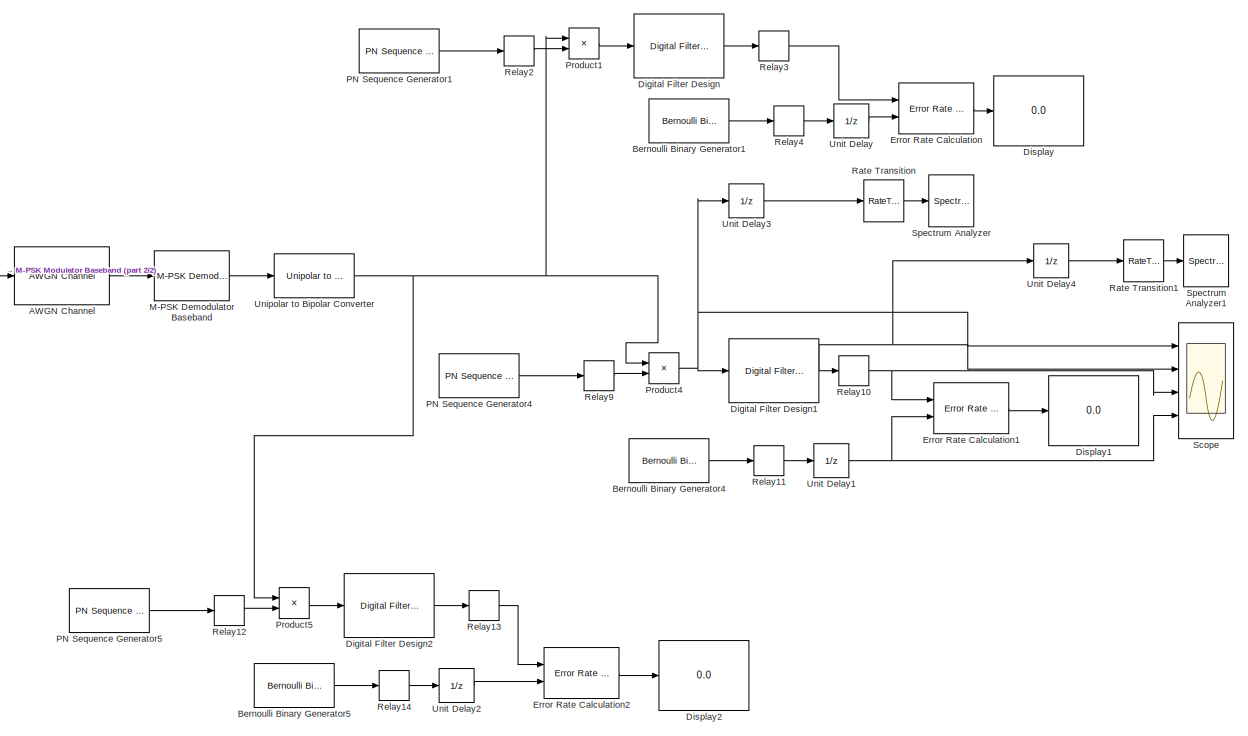
[diagram: root canvas - part 1/2, center side, full height]
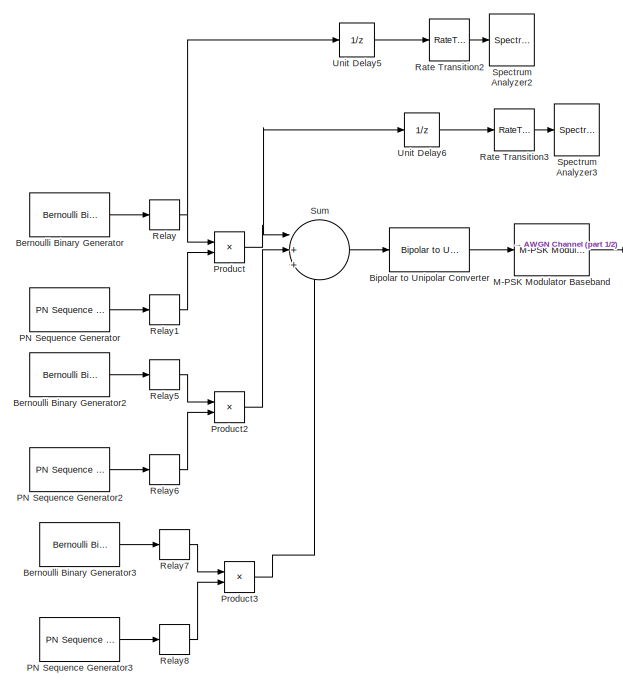
[diagram: root canvas - part 2/2, left side, full height]
MODEL slx_fc564ec34959
KIND model
CONFIG AbsTol = auto
CONFIG EnableMultiTasking = off
CONFIG FixedStep = auto
CONFIG MaxStep = auto
CONFIG MinStep = auto
CONFIG RelTol = 1e-3
CONFIG SampleTimeConstraint = Unconstrained
CONFIG Solver = VariableStepAuto
CONFIG SolverName = VariableStepAuto
CONFIG StartTime = 0.0
CONFIG StopTime = 10.0
BLOCK [Reference] AWGN Channel  REF=commchan3/AWGN
Channel
  Ports = [1, 1]
  SourceBlock = commchan3/AWGN\nChannel
  SourceProductBaseCode = CM
  SourceType = AWGN Channel
  UserDataPersistent = on
BLOCK [Reference] Bernoulli Binary Generator  REF=commrandsrc3/Bernoulli Binary
Generator
  Ports = [0, 1]
  SourceBlock = commrandsrc3/Bernoulli Binary\nGenerator
  SourceProductBaseCode = CM
  SourceType = Bernoulli Binary Generator
BLOCK [Reference] Bernoulli Binary Generator1  REF=commrandsrc3/Bernoulli Binary
Generator
  Ports = [0, 1]
  SourceBlock = commrandsrc3/Bernoulli Binary\nGenerator
  SourceProductBaseCode = CM
  SourceType = Bernoulli Binary Generator
BLOCK [Reference] Bernoulli Binary Generator2  REF=commrandsrc3/Bernoulli Binary
Generator
  Ports = [0, 1]
  SourceBlock = commrandsrc3/Bernoulli Binary\nGenerator
  SourceProductBaseCode = CM
  SourceType = Bernoulli Binary Generator
BLOCK [Reference] Bernoulli Binary Generator3  REF=commrandsrc3/Bernoulli Binary
Generator
  Ports = [0, 1]
  SourceBlock = commrandsrc3/Bernoulli Binary\nGenerator
  SourceProductBaseCode = CM
  SourceType = Bernoulli Binary Generator
BLOCK [Reference] Bernoulli Binary Generator4  REF=commrandsrc3/Bernoulli Binary
Generator
  Ports = [0, 1]
  SourceBlock = commrandsrc3/Bernoulli Binary\nGenerator
  SourceProductBaseCode = CM
  SourceType = Bernoulli Binary Generator
BLOCK [Reference] Bernoulli Binary Generator5  REF=commrandsrc3/Bernoulli Binary
Generator
  Ports = [0, 1]
  SourceBlock = commrandsrc3/Bernoulli Binary\nGenerator
  SourceProductBaseCode = CM
  SourceType = Bernoulli Binary Generator
BLOCK [Reference] Bipolar to Unipolar Converter  REF=commutil2/Bipolar to
Unipolar
Converter
  Ports = [1, 1]
  SourceBlock = commutil2/Bipolar to\nUnipolar\nConverter
  SourceProductBaseCode = CM
  SourceType = Bipolar to Unipolar Converter
BLOCK [Reference] Digital Filter Design  REF=dsparch4/Digital
Filter Design
  Ports = [1, 1]
  SourceBlock = dsparch4/Digital\nFilter Design
  SourceProductBaseCode = DS
  SourceType = Digital Filter Design
  UserDataPersistent = on
BLOCK [Reference] Digital Filter Design1  REF=dsparch4/Digital
Filter Design
  Ports = [1, 1]
  SourceBlock = dsparch4/Digital\nFilter Design
  SourceProductBaseCode = DS
  SourceType = Digital Filter Design
  UserDataPersistent = on
BLOCK [Reference] Digital Filter Design2  REF=dsparch4/Digital
Filter Design
  Ports = [1, 1]
  SourceBlock = dsparch4/Digital\nFilter Design
  SourceProductBaseCode = DS
  SourceType = Digital Filter Design
  UserDataPersistent = on
BLOCK [Display] Display
  Decimation = 1
  Ports = [1]
BLOCK [Display] Display1
  Decimation = 1
  Ports = [1]
BLOCK [Display] Display2
  Decimation = 1
  Ports = [1]
BLOCK [Reference] Error Rate Calculation  REF=commsink2/Error Rate
Calculation
  Ports = [2, 1]
  SourceBlock = commsink2/Error Rate\nCalculation
  SourceProductBaseCode = CM
  SourceType = Error Rate Calculation
BLOCK [Reference] Error Rate Calculation1  REF=commsink2/Error Rate
Calculation
  Ports = [2, 1]
  SourceBlock = commsink2/Error Rate\nCalculation
  SourceProductBaseCode = CM
  SourceType = Error Rate Calculation
BLOCK [Reference] Error Rate Calculation2  REF=commsink2/Error Rate
Calculation
  Ports = [2, 1]
  SourceBlock = commsink2/Error Rate\nCalculation
  SourceProductBaseCode = CM
  SourceType = Error Rate Calculation
BLOCK [Reference] M-PSK Demodulator Baseband  REF=commdigbbndpm3/M-PSK
Demodulator
Baseband
  Ports = [1, 1]
  SourceBlock = commdigbbndpm3/M-PSK\nDemodulator\nBaseband
  SourceProductBaseCode = CM
  SourceType = M-PSK Demodulator Baseband
BLOCK [Reference] M-PSK Modulator Baseband  REF=commdigbbndpm3/M-PSK
Modulator
Baseband
  Ports = [1, 1]
  SourceBlock = commdigbbndpm3/M-PSK\nModulator\nBaseband
  SourceProductBaseCode = CM
  SourceType = M-PSK Modulator Baseband
BLOCK [Reference] PN Sequence Generator  REF=commseqgen3/PN Sequence
Generator
  Ports = [0, 1]
  SourceBlock = commseqgen3/PN Sequence\nGenerator
  SourceProductBaseCode = CM
  SourceType = PN Sequence Generator
BLOCK [Reference] PN Sequence Generator1  REF=commseqgen3/PN Sequence
Generator
  Ports = [0, 1]
  SourceBlock = commseqgen3/PN Sequence\nGenerator
  SourceProductBaseCode = CM
  SourceType = PN Sequence Generator
BLOCK [Reference] PN Sequence Generator2  REF=commseqgen3/PN Sequence
Generator
  Ports = [0, 1]
  SourceBlock = commseqgen3/PN Sequence\nGenerator
  SourceProductBaseCode = CM
  SourceType = PN Sequence Generator
BLOCK [Reference] PN Sequence Generator3  REF=commseqgen3/PN Sequence
Generator
  Ports = [0, 1]
  SourceBlock = commseqgen3/PN Sequence\nGenerator
  SourceProductBaseCode = CM
  SourceType = PN Sequence Generator
BLOCK [Reference] PN Sequence Generator4  REF=commseqgen3/PN Sequence
Generator
  Ports = [0, 1]
  SourceBlock = commseqgen3/PN Sequence\nGenerator
  SourceProductBaseCode = CM
  SourceType = PN Sequence Generator
BLOCK [Reference] PN Sequence Generator5  REF=commseqgen3/PN Sequence
Generator
  Ports = [0, 1]
  SourceBlock = commseqgen3/PN Sequence\nGenerator
  SourceProductBaseCode = CM
  SourceType = PN Sequence Generator
BLOCK [Product] Product
  Ports = [2, 1]
BLOCK [Product] Product1
  Ports = [2, 1]
BLOCK [Product] Product2
  Ports = [2, 1]
BLOCK [Product] Product3
  Ports = [2, 1]
BLOCK [Product] Product4
  Ports = [2, 1]
BLOCK [Product] Product5
  Ports = [2, 1]
BLOCK [RateTransition] Rate Transition
  OutPortSampleTime = 1/200000
BLOCK [RateTransition] Rate Transition1
  OutPortSampleTime = 8e-5
BLOCK [RateTransition] Rate Transition2
  OutPortSampleTime = 3e-5
BLOCK [RateTransition] Rate Transition3
  OutPortSampleTime = 1/200000
BLOCK [Relay] Relay
  OffOutputValue = -1
  OffSwitchValue = 0.1
  OnSwitchValue = 0.9
BLOCK [Relay] Relay1
  OffOutputValue = -1
  OffSwitchValue = 0.1
  OnSwitchValue = 0.9
BLOCK [Relay] Relay10
  OffOutputValue = -1
  OffSwitchValue = 0
  OnSwitchValue = 0
BLOCK [Relay] Relay11
  OffOutputValue = -1
  OffSwitchValue = 0.1
  OnSwitchValue = 0.9
BLOCK [Relay] Relay12
  OffOutputValue = -1
  OffSwitchValue = 0.1
  OnSwitchValue = 0.9
BLOCK [Relay] Relay13
  OffOutputValue = -1
  OffSwitchValue = 0
  OnSwitchValue = 0
BLOCK [Relay] Relay14
  OffOutputValue = -1
  OffSwitchValue = 0.1
  OnSwitchValue = 0.9
BLOCK [Relay] Relay2
  OffOutputValue = -1
  OffSwitchValue = 0.1
  OnSwitchValue = 0.9
BLOCK [Relay] Relay3
  OffOutputValue = -1
  OffSwitchValue = 0
  OnSwitchValue = 0
BLOCK [Relay] Relay4
  OffOutputValue = -1
  OffSwitchValue = 0.1
  OnSwitchValue = 0.9
BLOCK [Relay] Relay5
  OffOutputValue = -1
  OffSwitchValue = 0.1
  OnSwitchValue = 0.9
BLOCK [Relay] Relay6
  OffOutputValue = -1
  OffSwitchValue = 0.1
  OnSwitchValue = 0.9
BLOCK [Relay] Relay7
  OffOutputValue = -1
  OffSwitchValue = 0.1
  OnSwitchValue = 0.9
BLOCK [Relay] Relay8
  OffOutputValue = -1
  OffSwitchValue = 0.1
  OnSwitchValue = 0.9
BLOCK [Relay] Relay9
  OffOutputValue = -1
  OffSwitchValue = 0.1
  OnSwitchValue = 0.9
BLOCK [Scope] Scope
  Floating = off
  NumInputPorts = 4
  Ports = [4]
  ScopeSpecificationString = Simulink.scopes.TimeScopeBlockCfg('CurrentConfiguration', extmgr.ConfigurationSet(extmgr.Configuration('Core','General UI',true),extmgr.Configuration('Core','Source UI',true),extmgr.Configuration('Sources','WiredSimulink',true),extmgr.Configuration('Visuals','Time Domain',true,'SerializedDisplays',{struct('MinYLimReal','-8.75','MaxYLimReal','8.75','YLabelReal','','MinYLimMag','0.00000','MaxYLimMag...<+3453ch>
BLOCK [SpectrumAnalyzer] Spectrum Analyzer
  Ports = [1]
  ScopeSpecificationString = spbscopes.SpectrumAnalyzerBlockCfg('CurrentConfiguration', extmgr.ConfigurationSet(extmgr.Configuration('Core','General UI',true),extmgr.Configuration('Core','Source UI',true),extmgr.Configuration('Sources','WiredSimulink',true),extmgr.Configuration('Visuals','Spectrum',true,'AxesProperties',struct('Color',{[0 0 0],[0 0 0]},'XColor',{[0.686274509803922 0.686274509803922 0.686274509803922],[0.68627...<+2004ch>
BLOCK [SpectrumAnalyzer] Spectrum Analyzer1
  Ports = [1]
  ScopeSpecificationString = spbscopes.SpectrumAnalyzerBlockCfg('CurrentConfiguration', extmgr.ConfigurationSet(extmgr.Configuration('Core','General UI',true),extmgr.Configuration('Core','Source UI',true),extmgr.Configuration('Sources','WiredSimulink',true),extmgr.Configuration('Visuals','Spectrum',true,'AxesProperties',struct('Color',{[0 0 0],[0 0 0]},'XColor',{[0.686274509803922 0.686274509803922 0.686274509803922],[0.68627...<+1914ch>
BLOCK [SpectrumAnalyzer] Spectrum Analyzer2
  Ports = [1]
  ScopeSpecificationString = spbscopes.SpectrumAnalyzerBlockCfg('CurrentConfiguration', extmgr.ConfigurationSet(extmgr.Configuration('Core','General UI',true),extmgr.Configuration('Core','Source UI',true),extmgr.Configuration('Sources','WiredSimulink',true),extmgr.Configuration('Visuals','Spectrum',true,'AxesProperties',struct('Color',{[0 0 0],[0 0 0]},'XColor',{[0.686274509803922 0.686274509803922 0.686274509803922],[0.68627...<+1979ch>
BLOCK [SpectrumAnalyzer] Spectrum Analyzer3
  Ports = [1]
  ScopeSpecificationString = spbscopes.SpectrumAnalyzerBlockCfg('CurrentConfiguration', extmgr.ConfigurationSet(extmgr.Configuration('Core','General UI',true),extmgr.Configuration('Core','Source UI',true),extmgr.Configuration('Sources','WiredSimulink',true),extmgr.Configuration('Visuals','Spectrum',true,'AxesProperties',struct('Color',{[0 0 0],[0 0 0]},'XColor',{[0.686274509803922 0.686274509803922 0.686274509803922],[0.68627...<+2004ch>
BLOCK [Sum] Sum
  Inputs = |+++
  Ports = [3, 1]
BLOCK [Reference] Unipolar to Bipolar Converter  REF=commutil2/Unipolar to
Bipolar
Converter
  Ports = [1, 1]
  SourceBlock = commutil2/Unipolar to\nBipolar\nConverter
  SourceProductBaseCode = CM
  SourceType = Unipolar to Bipolar Converter
BLOCK [UnitDelay] Unit Delay
  HasFrameUpgradeWarning = on
  SampleTime = -1
BLOCK [UnitDelay] Unit Delay1
  HasFrameUpgradeWarning = on
  SampleTime = -1
BLOCK [UnitDelay] Unit Delay2
  HasFrameUpgradeWarning = on
  SampleTime = -1
BLOCK [UnitDelay] Unit Delay3
  HasFrameUpgradeWarning = on
  SampleTime = -1
BLOCK [UnitDelay] Unit Delay4
  HasFrameUpgradeWarning = on
  SampleTime = -1
BLOCK [UnitDelay] Unit Delay5
  HasFrameUpgradeWarning = on
  SampleTime = -1
BLOCK [UnitDelay] Unit Delay6
  HasFrameUpgradeWarning = on
  SampleTime = -1
LINE AWGN Channel:1 -> M-PSK Demodulator Baseband:1
LINE Bernoulli Binary Generator1:1 -> Relay4:1
LINE Bernoulli Binary Generator2:1 -> Relay5:1
LINE Bernoulli Binary Generator3:1 -> Relay7:1
LINE Bernoulli Binary Generator4:1 -> Relay11:1
LINE Bernoulli Binary Generator5:1 -> Relay14:1
LINE Bernoulli Binary Generator:1 -> Relay:1
LINE Bipolar to Unipolar Converter:1 -> M-PSK Modulator Baseband:1
NET Digital Filter Design1:1 -> Relay10:1, Scope:2, Unit Delay4:1
LINE Digital Filter Design2:1 -> Relay13:1
LINE Digital Filter Design:1 -> Relay3:1
LINE Error Rate Calculation1:1 -> Display1:1
LINE Error Rate Calculation2:1 -> Display2:1
LINE Error Rate Calculation:1 -> Display:1
LINE M-PSK Demodulator Baseband:1 -> Unipolar to Bipolar Converter:1
LINE M-PSK Modulator Baseband:1 -> AWGN Channel:1
LINE PN Sequence Generator1:1 -> Relay2:1
LINE PN Sequence Generator2:1 -> Relay6:1
LINE PN Sequence Generator3:1 -> Relay8:1
LINE PN Sequence Generator4:1 -> Relay9:1
LINE PN Sequence Generator5:1 -> Relay12:1
LINE PN Sequence Generator:1 -> Relay1:1
LINE Product1:1 -> Digital Filter Design:1
LINE Product2:1 -> Sum:2
LINE Product3:1 -> Sum:3
NET Product4:1 -> Digital Filter Design1:1, Scope:1, Unit Delay3:1
LINE Product5:1 -> Digital Filter Design2:1
NET Product:1 -> Sum:1, Unit Delay6:1
LINE Rate Transition1:1 -> Spectrum Analyzer1:1
LINE Rate Transition2:1 -> Spectrum Analyzer2:1
LINE Rate Transition3:1 -> Spectrum Analyzer3:1
LINE Rate Transition:1 -> Spectrum Analyzer:1
NET Relay10:1 -> Error Rate Calculation1:1, Scope:3
LINE Relay11:1 -> Unit Delay1:1
LINE Relay12:1 -> Product5:2
LINE Relay13:1 -> Error Rate Calculation2:1
LINE Relay14:1 -> Unit Delay2:1
LINE Relay1:1 -> Product:2
LINE Relay2:1 -> Product1:2
LINE Relay3:1 -> Error Rate Calculation:1
LINE Relay4:1 -> Unit Delay:1
LINE Relay5:1 -> Product2:1
LINE Relay6:1 -> Product2:2
LINE Relay7:1 -> Product3:1
LINE Relay8:1 -> Product3:2
LINE Relay9:1 -> Product4:2
NET Relay:1 -> Product:1, Unit Delay5:1
LINE Sum:1 -> Bipolar to Unipolar Converter:1
NET Unipolar to Bipolar Converter:1 -> Product1:1, Product4:1, Product5:1
NET Unit Delay1:1 -> Error Rate Calculation1:2, Scope:4
LINE Unit Delay2:1 -> Error Rate Calculation2:2
LINE Unit Delay3:1 -> Rate Transition:1
LINE Unit Delay4:1 -> Rate Transition1:1
LINE Unit Delay5:1 -> Rate Transition2:1
LINE Unit Delay6:1 -> Rate Transition3:1
LINE Unit Delay:1 -> Error Rate Calculation:2
note: NET lines group one-source signal fan-out (src -> all destinations, sorted); 1:1 wires keep LINE
